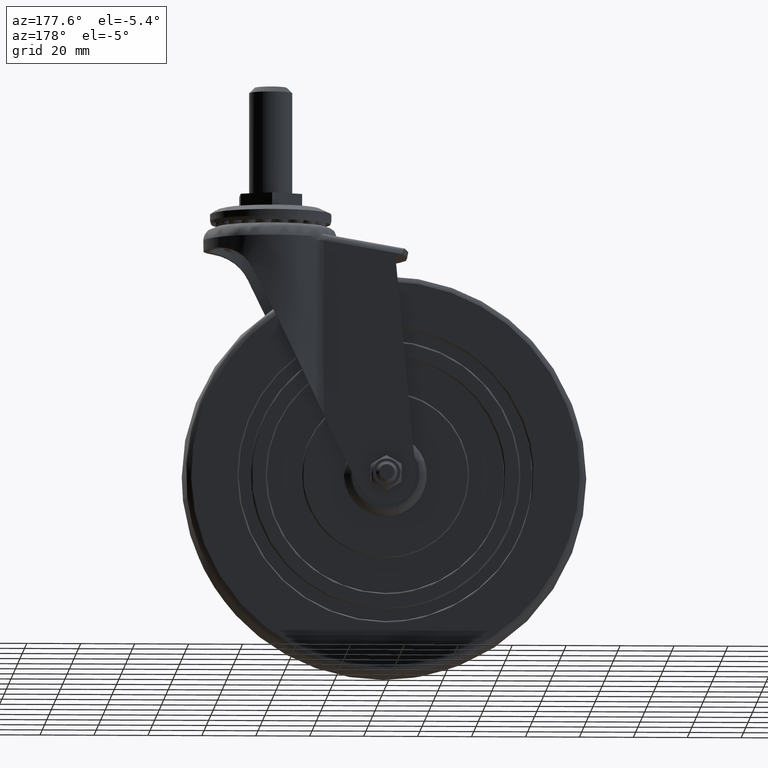
[diagram: clean part render]
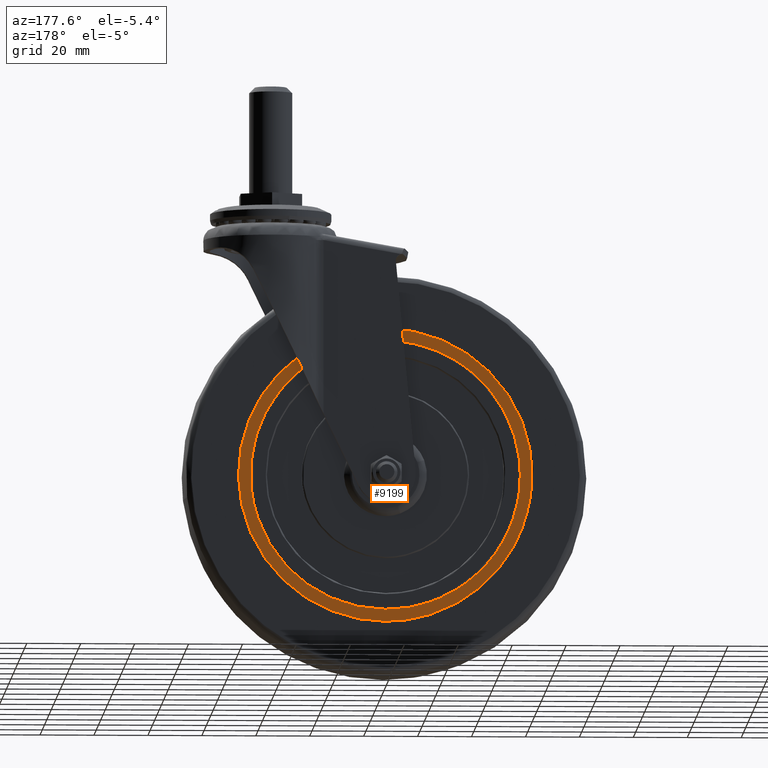
[diagram: same view with one face highlighted and labeled with its STEP entity id]
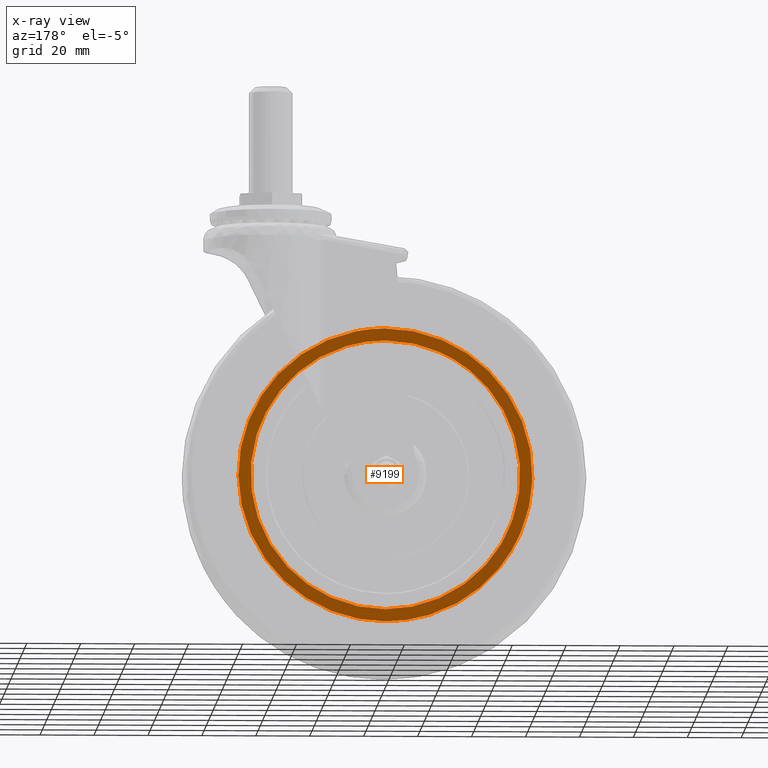
[diagram: x-ray of the same camera — body ghosted, the highlighted face saturated]
A machine part, auxiliary view. The second image highlights one B-rep face of the part: STEP entity #9199.
The next image is the same camera in x-ray: the body ghosted, the highlighted face saturated — about 0% of this face is hidden behind the body in this view.
In plain terms, the highlighted face is a freeform B-spline surface patch.
Its self-contained STEP definition (entity closure, byte-faithful):
#6342=CARTESIAN_POINT('',(39.130408697334801,12.500000000000000,31.125730757358021));
#6343=VERTEX_POINT('',#6342);
#6349=CARTESIAN_POINT('',(0.0,12.500000000000000,-50.0));
#6350=VERTEX_POINT('',#6349);
#6351=CARTESIAN_POINT('',(0.0,12.500000000000000,-50.0));
#6352=CARTESIAN_POINT('',(49.999999999999993,12.499999999999998,-49.999999999999993));
#6353=CARTESIAN_POINT('',(50.0,12.500000000000000,1.855278E-015));
#6354=CARTESIAN_POINT('',(50.0,12.499999999999996,17.460780900855873));
#6355=CARTESIAN_POINT('',(39.130408697334815,12.500000000000000,31.125730757358042));
#6363=(BOUNDED_CURVE()B_SPLINE_CURVE(2,(#6351,#6352,#6353,#6354,#6355),.UNSPECIFIED.,.F.,.U.)B_SPLINE_CURVE_WITH_KNOTS((3,2,3),(0.0,0.250000000000000,0.357863873234684),.UNSPECIFIED.)CURVE()GEOMETRIC_REPRESENTATION_ITEM()RATIONAL_B_SPLINE_CURVE((1.0,0.707106781186547,1.0,0.873629611898429,0.856305619979303))REPRESENTATION_ITEM(''));
#6364=EDGE_CURVE('',#6350,#6343,#6363,.T.);
#6366=CARTESIAN_POINT('',(-31.125721037793081,12.500000000000000,39.130416428621032));
#6367=VERTEX_POINT('',#6366);
#6368=CARTESIAN_POINT('',(-31.125721037793078,12.499999999999998,39.130416428621032));
#6369=CARTESIAN_POINT('',(-50.000000000000014,12.499999999999998,24.117145541543309));
#6370=CARTESIAN_POINT('',(-50.0,12.500000000000000,1.855278E-015));
#6371=CARTESIAN_POINT('',(-49.999999999999993,12.499999999999998,-49.999999999999993));
#6372=CARTESIAN_POINT('',(0.0,12.500000000000000,-50.0));
#6380=(BOUNDED_CURVE()B_SPLINE_CURVE(2,(#6368,#6369,#6370,#6371,#6372),.UNSPECIFIED.,.F.,.U.)B_SPLINE_CURVE_WITH_KNOTS((3,2,3),(0.607863835634830,0.750000000000000,1.0),.UNSPECIFIED.)CURVE()GEOMETRIC_REPRESENTATION_ITEM()RATIONAL_B_SPLINE_CURVE((0.856305632057124,0.833477125237150,1.0,0.707106781186547,1.0))REPRESENTATION_ITEM(''));
#6381=EDGE_CURVE('',#6367,#6350,#6380,.T.);
#6421=CARTESIAN_POINT('',(0.0,12.500000000000000,50.0));
#6422=VERTEX_POINT('',#6421);
#6423=CARTESIAN_POINT('',(0.0,12.500000000000000,50.0));
#6424=CARTESIAN_POINT('',(-17.460773933845793,12.500000000000000,50.0));
#6425=CARTESIAN_POINT('',(-31.125721037793078,12.499999999999998,39.130416428621032));
#6433=(BOUNDED_CURVE()B_SPLINE_CURVE(2,(#6423,#6424,#6425),.UNSPECIFIED.,.F.,.U.)B_SPLINE_CURVE_WITH_KNOTS((3,3),(0.500000000000000,0.607863835634830),.UNSPECIFIED.)CURVE()GEOMETRIC_REPRESENTATION_ITEM()RATIONAL_B_SPLINE_CURVE((1.0,0.873629655949398,0.856305632057124))REPRESENTATION_ITEM(''));
#6434=EDGE_CURVE('',#6422,#6367,#6433,.T.);
#6436=CARTESIAN_POINT('',(39.130408697334815,12.500000000000000,31.125730757358042));
#6437=CARTESIAN_POINT('',(24.117137887097382,12.499999999999998,49.999999999999993));
#6438=CARTESIAN_POINT('',(0.0,12.500000000000000,50.0));
#6446=(BOUNDED_CURVE()B_SPLINE_CURVE(2,(#6436,#6437,#6438),.UNSPECIFIED.,.F.,.U.)B_SPLINE_CURVE_WITH_KNOTS((3,3),(0.357863873234684,0.500000000000000),.UNSPECIFIED.)CURVE()GEOMETRIC_REPRESENTATION_ITEM()RATIONAL_B_SPLINE_CURVE((0.856305619979303,0.833477169288118,1.0))REPRESENTATION_ITEM(''));
#6447=EDGE_CURVE('',#6343,#6422,#6446,.T.);
#6509=CARTESIAN_POINT('',(29.578713062868658,12.500000000000000,-45.775003416577853));
#6510=VERTEX_POINT('',#6509);
#6516=CARTESIAN_POINT('',(0.0,12.500000000000000,54.500011048105200));
#6517=VERTEX_POINT('',#6516);
#6518=CARTESIAN_POINT('',(29.578713062868655,12.500000000000002,-45.775003416577860));
#6519=CARTESIAN_POINT('',(54.500011048105193,12.500000000000002,-29.671456344150606));
#6520=CARTESIAN_POINT('',(54.500011048105200,12.500000000000000,1.855278E-015));
#6521=CARTESIAN_POINT('',(54.500011048105200,12.500000000000000,54.500011048105200));
#6522=CARTESIAN_POINT('',(0.0,12.500000000000000,54.500011048105200));
#6530=(BOUNDED_CURVE()B_SPLINE_CURVE(2,(#6518,#6519,#6520,#6521,#6522),.UNSPECIFIED.,.F.,.U.)B_SPLINE_CURVE_WITH_KNOTS((3,2,3),(0.092934689987013,0.250000000000000,0.500000000000000),.UNSPECIFIED.)CURVE()GEOMETRIC_REPRESENTATION_ITEM()RATIONAL_B_SPLINE_CURVE((0.863190131470273,0.815986543145453,1.0,0.707106781186548,1.0))REPRESENTATION_ITEM(''));
#6531=EDGE_CURVE('',#6510,#6517,#6530,.T.);
#6533=CARTESIAN_POINT('',(-42.053555566901480,12.500000000000000,-34.666261240938397));
#6534=VERTEX_POINT('',#6533);
#6535=CARTESIAN_POINT('',(0.0,12.500000000000000,54.500011048105200));
#6536=CARTESIAN_POINT('',(-54.500011048105200,12.500000000000000,54.500011048105200));
#6537=CARTESIAN_POINT('',(-54.500011048105200,12.500000000000000,1.855278E-015));
#6538=CARTESIAN_POINT('',(-54.500011048105200,12.500000000000005,-19.567496953903561));
#6539=CARTESIAN_POINT('',(-42.053555566901487,12.500000000000000,-34.666261240938397));
#6547=(BOUNDED_CURVE()B_SPLINE_CURVE(2,(#6535,#6536,#6537,#6538,#6539),.UNSPECIFIED.,.F.,.U.)B_SPLINE_CURVE_WITH_KNOTS((3,2,3),(0.500000000000000,0.750000000000000,0.860504594242254),.UNSPECIFIED.)CURVE()GEOMETRIC_REPRESENTATION_ITEM()RATIONAL_B_SPLINE_CURVE((1.0,0.707106781186548,1.0,0.870535814794847,0.855522727629690))REPRESENTATION_ITEM(''));
#6548=EDGE_CURVE('',#6517,#6534,#6547,.T.);
#6650=CARTESIAN_POINT('',(0.0,12.500000000000000,-54.500011048105200));
#6651=VERTEX_POINT('',#6650);
#6652=CARTESIAN_POINT('',(-42.053555566901487,12.500000000000000,-34.666261240938397));
#6653=CARTESIAN_POINT('',(-25.703880897686570,12.500000000000002,-54.500011048105200));
#6654=CARTESIAN_POINT('',(0.0,12.500000000000000,-54.500011048105200));
#6662=(BOUNDED_CURVE()B_SPLINE_CURVE(2,(#6652,#6653,#6654),.UNSPECIFIED.,.F.,.U.)B_SPLINE_CURVE_WITH_KNOTS((3,3),(0.860504594242254,1.0),.UNSPECIFIED.)CURVE()GEOMETRIC_REPRESENTATION_ITEM()RATIONAL_B_SPLINE_CURVE((0.855522727629690,0.836570966391701,1.0))REPRESENTATION_ITEM(''));
#6663=EDGE_CURVE('',#6534,#6651,#6662,.T.);
#6665=CARTESIAN_POINT('',(0.0,12.500000000000000,-54.500011048105200));
#6666=CARTESIAN_POINT('',(16.076190039173618,12.500000000000005,-54.500011048105193));
#6667=CARTESIAN_POINT('',(29.578713062868655,12.500000000000002,-45.775003416577860));
#6675=(BOUNDED_CURVE()B_SPLINE_CURVE(2,(#6665,#6666,#6667),.UNSPECIFIED.,.F.,.U.)B_SPLINE_CURVE_WITH_KNOTS((3,3),(0.0,0.092934689987013),.UNSPECIFIED.)CURVE()GEOMETRIC_REPRESENTATION_ITEM()RATIONAL_B_SPLINE_CURVE((1.0,0.891120238041094,0.863190131470273))REPRESENTATION_ITEM(''));
#6676=EDGE_CURVE('',#6651,#6510,#6675,.T.);
#9182=CARTESIAN_POINT('',(-59.939649345188052,12.500000000000000,-59.944562963761939));
#9183=CARTESIAN_POINT('',(-59.939649345188052,12.500000000000000,59.944564912834217));
#9184=CARTESIAN_POINT('',(59.918555510445692,12.500000000000000,-59.944562963761939));
#9185=CARTESIAN_POINT('',(59.918555510445692,12.500000000000000,59.944564912834217));
#9186=B_SPLINE_SURFACE_WITH_KNOTS('',1,1,((#9182,#9184),(#9183,#9185)),.UNSPECIFIED.,.F.,.F.,.U.,(2,2),(2,2),(0.0,119.889127876596210),(0.0,119.858204855633700),.UNSPECIFIED.);
#9187=ORIENTED_EDGE('',*,*,#6663,.F.);
#9188=ORIENTED_EDGE('',*,*,#6548,.F.);
#9189=ORIENTED_EDGE('',*,*,#6531,.F.);
#9190=ORIENTED_EDGE('',*,*,#6676,.F.);
#9191=EDGE_LOOP('',(#9187,#9188,#9189,#9190));
#9192=FACE_OUTER_BOUND('',#9191,.T.);
#9193=ORIENTED_EDGE('',*,*,#6364,.T.);
#9194=ORIENTED_EDGE('',*,*,#6447,.T.);
#9195=ORIENTED_EDGE('',*,*,#6434,.T.);
#9196=ORIENTED_EDGE('',*,*,#6381,.T.);
#9197=EDGE_LOOP('',(#9193,#9194,#9195,#9196));
#9198=FACE_BOUND('',#9197,.T.);
#9199=ADVANCED_FACE('',(#9192,#9198),#9186,.T.);